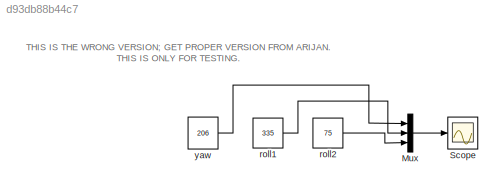
MODEL slx_d93db88b44c7
KIND model
CONFIG AbsTol = auto
CONFIG EnableMultiTasking = off
CONFIG FixedStep = auto
CONFIG MaxStep = auto
CONFIG MinStep = auto
CONFIG RelTol = 1e-3
CONFIG SampleTimeConstraint = Unconstrained
CONFIG SolverName = VariableStepAuto
CONFIG StartTime = 0.0
CONFIG StopTime = 10.0
BLOCK [Mux] Mux
  DisplayOption = bar
  Inputs = 3
BLOCK [Scope] Scope
  Floating = off
  NumInputPorts = 1
  ScopeSpecificationString = Simulink.scopes.TimeScopeBlockCfg('CurrentConfiguration', extmgr.ConfigurationSet(extmgr.Configuration('Core','General UI',true),extmgr.Configuration('Core','Source UI',true),extmgr.Configuration('Sources','WiredSimulink',true),extmgr.Configuration('Visuals','Time Domain',true),extmgr.Configuration('Tools','Plot Navigation',true),extmgr.Configuration('Tools','Measurements',true,'Version','2022a'))...<+48ch>
BLOCK [Constant] roll1
  Value = 335
BLOCK [Constant] roll2
  Value = 75
BLOCK [Constant] yaw
  Value = 206
ANNOTATION (root): THIS IS THE WRONG VERSION; GET PROPER VERSION FROM ARIJAN. THIS IS ONLY FOR TESTING.
LINE Mux:1 -> Scope:1
LINE roll1:1 -> Mux:2
LINE roll2:1 -> Mux:3
LINE yaw:1 -> Mux:1
